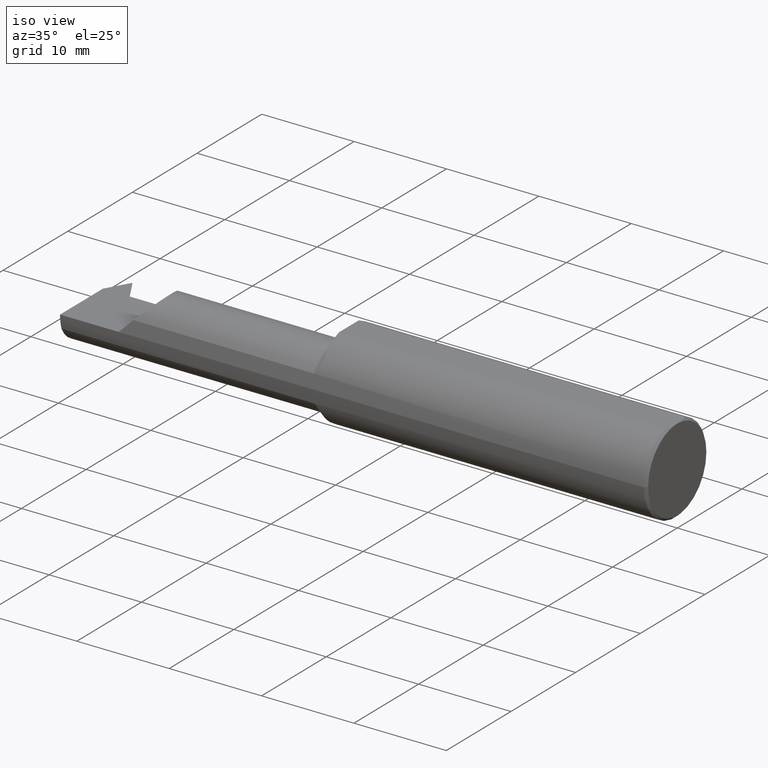
[diagram: clean part render]
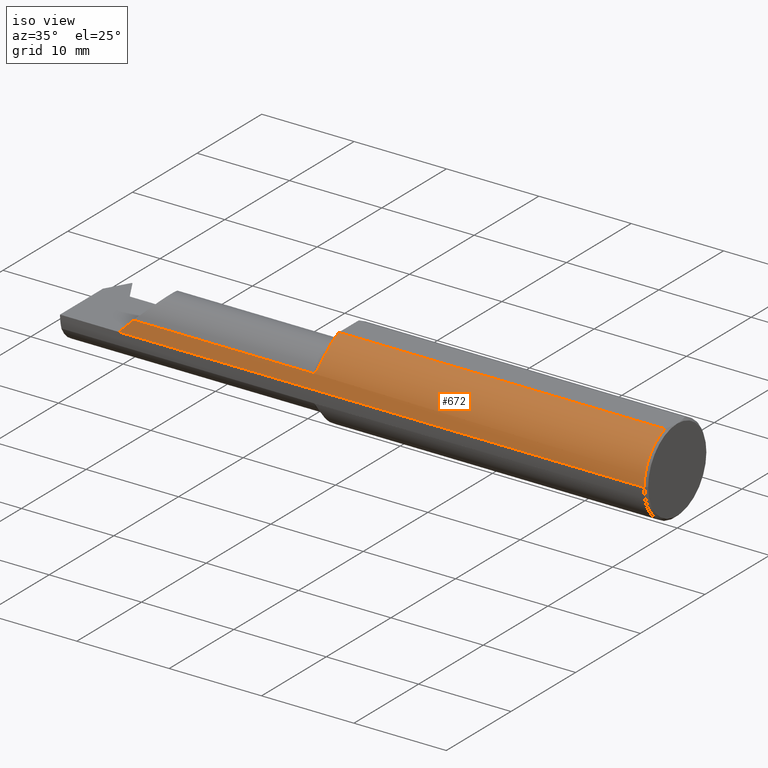
[diagram: same view with one face highlighted and labeled with its STEP entity id]
A machine part, iso view. The second image highlights one B-rep face of the part: STEP entity #672.
In plain terms, the highlighted cylindrical surface (partial cylindrical patch) has radius 4.7587 mm, axis along (1, 0, -0).
Its self-contained STEP definition (entity closure, byte-faithful):
#39 = ORIENTED_EDGE ( 'NONE', *, *, #803, .T. ) ;
#41 = CIRCLE ( 'NONE', #152, 0.1873499999999999055 ) ;
#42 = CARTESIAN_POINT ( 'NONE',  ( -1.414343418362526750, -0.1730952584121028814, 0.07182162584506034120 ) ) ;
#70 = FACE_OUTER_BOUND ( 'NONE', #537, .T. ) ;
#105 = CARTESIAN_POINT ( 'NONE',  ( -1.399999999999979039, -0.1236042208122572206, 0.1411207813207381034 ) ) ;
#114 = VECTOR ( 'NONE', #856, 39.37007874015748143 ) ;
#121 = CARTESIAN_POINT ( 'NONE',  ( -2.250000000000000000, -0.1873499999999998222, 0.000000000000000000 ) ) ;
#123 = CARTESIAN_POINT ( 'NONE',  ( -2.192691453216395914, -0.1783697086546688626, 0.05730854678360348953 ) ) ;
#125 = CARTESIAN_POINT ( 'NONE',  ( -1.424999999999999600, -0.1783697086546689181, 0.05730854678360410015 ) ) ;
#133 = VERTEX_POINT ( 'NONE', #121 ) ;
#134 = DIRECTION ( 'NONE',  ( -1.253099476677463101E-16, 1.000000000000000000, 0.000000000000000000 ) ) ;
#135 = EDGE_CURVE ( 'NONE', #133, #718, #392, .T. ) ;
#144 = LINE ( 'NONE', #330, #290 ) ;
#152 = AXIS2_PLACEMENT_3D ( 'NONE', #729, #654, #134 ) ;
#169 = DIRECTION ( 'NONE',  ( 1.000000000000000000, -9.108622265535208572E-17, 0.000000000000000000 ) ) ;
#179 = CARTESIAN_POINT ( 'NONE',  ( -1.406810654710997532, -0.1605151270935945562, 0.09708342838367613192 ) ) ;
#189 = CARTESIAN_POINT ( 'NONE',  ( -1.408844572613942470, -0.1652240583778486482, 0.08882027308812183441 ) ) ;
#201 = B_SPLINE_CURVE_WITH_KNOTS ( 'NONE', 3,
 ( #244, #105, #778, #521, #787, #179, #189, #696, #42, #231, #238, #505, #446, #338, #739, #125 ),
 .UNSPECIFIED., .F., .F.,
 ( 4, 2, 2, 2, 2, 2, 2, 4 ),
 ( 0.0004765446698262938469, 0.001211022660611473043, 0.001945500651396652294, 0.002679978642181831544, 0.003047217637574418242, 0.003230837135270707688, 0.003322646884118846990, 0.003414456632966985424 ),
 .UNSPECIFIED. ) ;
#220 = VECTOR ( 'NONE', #351, 39.37007874015748143 ) ;
#230 = CARTESIAN_POINT ( 'NONE',  ( -2.192691453216395914, -0.1783697086546688626, 0.05730854678360348953 ) ) ;
#231 = CARTESIAN_POINT ( 'NONE',  ( -1.417163479082054867, -0.1755340703777918676, 0.06552011612893761383 ) ) ;
#238 = CARTESIAN_POINT ( 'NONE',  ( -1.418195961774019631, -0.1762973784583060366, 0.06343092843766175160 ) ) ;
#244 = CARTESIAN_POINT ( 'NONE',  ( -1.399999999999999911, -0.1160303770345037788, 0.1470951192431537435 ) ) ;
#258 = DIRECTION ( 'NONE',  ( 1.000000000000000000, 1.224646799147352961E-16, -0.000000000000000000 ) ) ;
#262 = ORIENTED_EDGE ( 'NONE', *, *, #819, .F. ) ;
#281 = VERTEX_POINT ( 'NONE', #475 ) ;
#290 = VECTOR ( 'NONE', #606, 39.37007874015748143 ) ;
#316 = CARTESIAN_POINT ( 'NONE',  ( -1.399999999999999911, 1.959434878635765230E-16, 0.000000000000000000 ) ) ;
#327 = CARTESIAN_POINT ( 'NONE',  ( -2.500000000000000000, 6.123233995736767268E-17, 0.000000000000000000 ) ) ;
#329 = EDGE_CURVE ( 'NONE', #281, #638, #419, .T. ) ;
#330 = CARTESIAN_POINT ( 'NONE',  ( -2.500000000000000000, -0.06039039658753642126, 0.1773500000000000909 ) ) ;
#338 = CARTESIAN_POINT ( 'NONE',  ( -1.422655856876659186, -0.1781552959227965804, 0.05797775639605805970 ) ) ;
#351 = DIRECTION ( 'NONE',  ( -1.000000000000000000, 9.108622265535208572E-17, -0.000000000000000000 ) ) ;
#362 = ORIENTED_EDGE ( 'NONE', *, *, #135, .T. ) ;
#373 = CARTESIAN_POINT ( 'NONE',  ( -1.399999999999999911, -0.06039039658753628248, 0.1773500000000000909 ) ) ;
#392 = LINE ( 'NONE', #700, #114 ) ;
#419 = LINE ( 'NONE', #675, #220 ) ;
#436 = AXIS2_PLACEMENT_3D ( 'NONE', #316, #169, #441 ) ;
#437 = VERTEX_POINT ( 'NONE', #373 ) ;
#441 = DIRECTION ( 'NONE',  ( 0.000000000000000000, -1.000000000000000000, -4.440892098500626162E-15 ) ) ;
#446 = CARTESIAN_POINT ( 'NONE',  ( -1.420882408083194326, -0.1776276410483735024, 0.05957475000073453320 ) ) ;
#475 = CARTESIAN_POINT ( 'NONE',  ( -1.424999999999999600, -0.1783697086546689181, 0.05730854678360410015 ) ) ;
#495 = AXIS2_PLACEMENT_3D ( 'NONE', #327, #258, #525 ) ;
#500 = CARTESIAN_POINT ( 'NONE',  ( -0.009999999999999049580, -0.1873499999999995447, 2.294375778202565098E-17 ) ) ;
#505 = CARTESIAN_POINT ( 'NONE',  ( -1.420156893127617614, -0.1773094052629642092, 0.06051821018283436160 ) ) ;
#521 = CARTESIAN_POINT ( 'NONE',  ( -1.402207105173743695, -0.1438831799117039900, 0.1203810775392108040 ) ) ;
#525 = DIRECTION ( 'NONE',  ( 0.000000000000000000, 1.000000000000000000, 0.000000000000000000 ) ) ;
#534 = EDGE_CURVE ( 'NONE', #133, #638, #650, .T. ) ;
#537 = EDGE_LOOP ( 'NONE', ( #830, #362, #768, #262, #671, #39, #806 ) ) ;
#545 = EDGE_CURVE ( 'NONE', #437, #706, #815, .T. ) ;
#606 = DIRECTION ( 'NONE',  ( 1.000000000000000000, 1.224646799147352961E-16, -0.000000000000000000 ) ) ;
#628 = CARTESIAN_POINT ( 'NONE',  ( -2.230507368514858868, -0.1873499999999997390, 0.01949263148514107299 ) ) ;
#638 = VERTEX_POINT ( 'NONE', #123 ) ;
#643 = EDGE_CURVE ( 'NONE', #718, #765, #41, .T. ) ;
#650 =( BOUNDED_CURVE ( )  B_SPLINE_CURVE ( 3, ( #853, #628, #835, #230 ),
 .UNSPECIFIED., .F., .F. ) 
 B_SPLINE_CURVE_WITH_KNOTS ( ( 4, 4 ),
 ( 4.712388980384689674, 5.023262387692872366 ),
 .UNSPECIFIED. ) 
 CURVE ( )  GEOMETRIC_REPRESENTATION_ITEM ( )  RATIONAL_B_SPLINE_CURVE ( ( 1.000000000000000000, 0.9919626788073500068, 0.9919626788073500068, 1.000000000000000000 ) ) 
 REPRESENTATION_ITEM ( '' )  );
#654 = DIRECTION ( 'NONE',  ( -1.000000000000000000, -1.224646799147319927E-16, 0.000000000000000000 ) ) ;
#671 = ORIENTED_EDGE ( 'NONE', *, *, #545, .T. ) ;
#672 = ADVANCED_FACE ( 'NONE', ( #70 ), #871, .T. ) ;
#675 = CARTESIAN_POINT ( 'NONE',  ( -1.903037187078897574, -0.1783697086546686961, 0.05730854678360398913 ) ) ;
#696 = CARTESIAN_POINT ( 'NONE',  ( -1.412861924135735858, -0.1712588160411454563, 0.07610809679501795433 ) ) ;
#700 = CARTESIAN_POINT ( 'NONE',  ( -2.500000000000000000, -0.1873499999999998500, 2.294375778202565098E-17 ) ) ;
#706 = VERTEX_POINT ( 'NONE', #716 ) ;
#716 = CARTESIAN_POINT ( 'NONE',  ( -1.399999999999999911, -0.1160303770345037788, 0.1470951192431537435 ) ) ;
#718 = VERTEX_POINT ( 'NONE', #500 ) ;
#729 = CARTESIAN_POINT ( 'NONE',  ( -0.009999999999999073866, 3.661693929450587103E-16, 0.000000000000000000 ) ) ;
#739 = CARTESIAN_POINT ( 'NONE',  ( -1.423764212023046705, -0.1783697086546786326, 0.05730854678357379800 ) ) ;
#765 = VERTEX_POINT ( 'NONE', #783 ) ;
#768 = ORIENTED_EDGE ( 'NONE', *, *, #643, .T. ) ;
#778 = CARTESIAN_POINT ( 'NONE',  ( -1.400459820461650962, -0.1306920593655966079, 0.1345866223284640506 ) ) ;
#783 = CARTESIAN_POINT ( 'NONE',  ( -0.009999999999999073866, -0.06039039658753610901, 0.1773500000000000909 ) ) ;
#787 = CARTESIAN_POINT ( 'NONE',  ( -1.403482061302840922, -0.1498697720273051703, 0.1128244190106236083 ) ) ;
#803 = EDGE_CURVE ( 'NONE', #706, #281, #201, .T. ) ;
#806 = ORIENTED_EDGE ( 'NONE', *, *, #329, .T. ) ;
#815 = CIRCLE ( 'NONE', #436, 0.1873499999999999055 ) ;
#819 = EDGE_CURVE ( 'NONE', #437, #765, #144, .T. ) ;
#830 = ORIENTED_EDGE ( 'NONE', *, *, #534, .F. ) ;
#835 = CARTESIAN_POINT ( 'NONE',  ( -2.211249739839921347, -0.1843323154515824347, 0.03875026016007811214 ) ) ;
#853 = CARTESIAN_POINT ( 'NONE',  ( -2.250000000000000000, -0.1873499999999998222, 0.000000000000000000 ) ) ;
#856 = DIRECTION ( 'NONE',  ( 1.000000000000000000, 1.224646799147352961E-16, -0.000000000000000000 ) ) ;
#871 = CYLINDRICAL_SURFACE ( 'NONE', #495, 0.1873499999999999055 ) ;